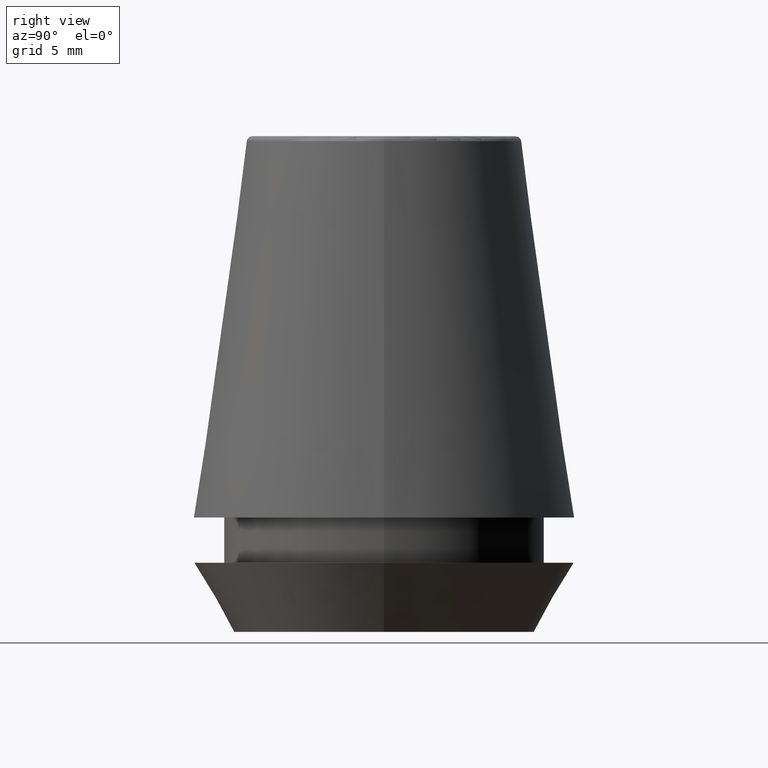
[diagram: clean part render]
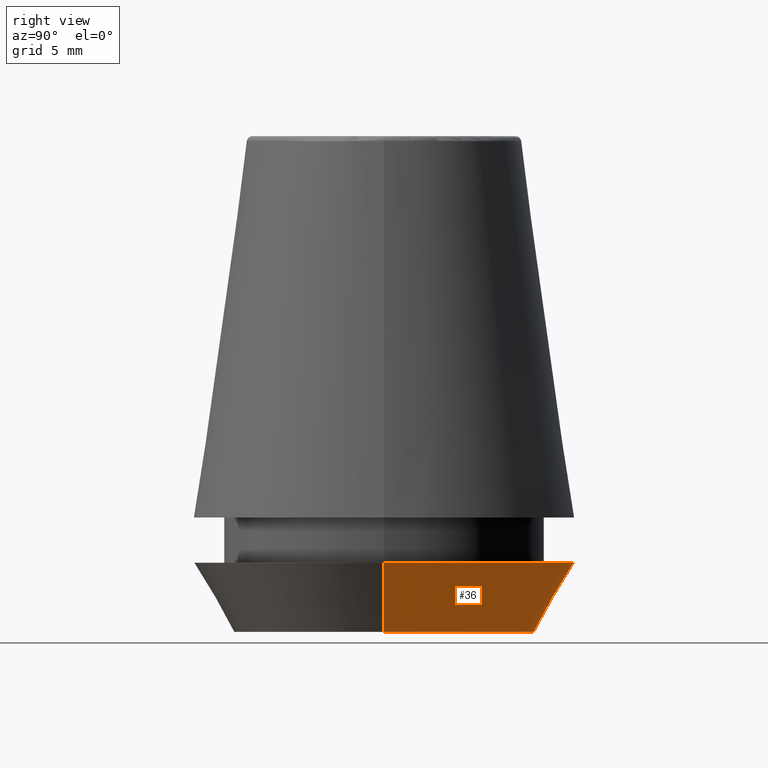
[diagram: same view with one face highlighted and labeled with its STEP entity id]
A machine part, right view. The second image highlights one B-rep face of the part: STEP entity #36.
In plain terms, the highlighted conical surface has half-angle 30 deg.
Its self-contained STEP definition (entity closure, byte-faithful):
#4 = CARTESIAN_POINT ( 'NONE',  ( 10.26217568973925200, 0.0000000000000000000, 0.0000000000000000000 ) ) ;
#36 = ADVANCED_FACE ( 'NONE', ( #154 ), #330, .T. ) ;
#41 = DIRECTION ( 'NONE',  ( -0.0000000000000000000, -0.0000000000000000000, 1.000000000000000000 ) ) ;
#56 = DIRECTION ( 'NONE',  ( 1.000000000000000000, 0.0000000000000000000, 0.0000000000000000000 ) ) ;
#57 = ORIENTED_EDGE ( 'NONE', *, *, #64, .F. ) ;
#64 = EDGE_CURVE ( 'NONE', #69, #136, #370, .T. ) ;
#69 = VERTEX_POINT ( 'NONE', #162 ) ;
#84 = CARTESIAN_POINT ( 'NONE',  ( 0.0000000000000000000, 0.0000000000000000000, 0.0000000000000000000 ) ) ;
#85 = EDGE_CURVE ( 'NONE', #185, #136, #348, .T. ) ;
#90 = EDGE_CURVE ( 'NONE', #124, #185, #270, .T. ) ;
#96 = AXIS2_PLACEMENT_3D ( 'NONE', #385, #192, #195 ) ;
#103 = ORIENTED_EDGE ( 'NONE', *, *, #230, .F. ) ;
#116 = ORIENTED_EDGE ( 'NONE', *, *, #90, .T. ) ;
#124 = VERTEX_POINT ( 'NONE', #287 ) ;
#136 = VERTEX_POINT ( 'NONE', #264 ) ;
#154 = FACE_OUTER_BOUND ( 'NONE', #296, .T. ) ;
#162 = CARTESIAN_POINT ( 'NONE',  ( 13.00000000000000000, 0.0000000000000000000, 4.742050807568884500 ) ) ;
#166 = LINE ( 'NONE', #4, #305 ) ;
#177 = VECTOR ( 'NONE', #278, 1000.000000000000200 ) ;
#185 = VERTEX_POINT ( 'NONE', #263 ) ;
#192 = DIRECTION ( 'NONE',  ( -0.0000000000000000000, -0.0000000000000000000, 1.000000000000000000 ) ) ;
#195 = DIRECTION ( 'NONE',  ( 1.000000000000000000, 0.0000000000000000000, 0.0000000000000000000 ) ) ;
#210 = CARTESIAN_POINT ( 'NONE',  ( -10.26217568973925200, 1.256754061072695800E-015, 0.0000000000000000000 ) ) ;
#230 = EDGE_CURVE ( 'NONE', #124, #69, #166, .T. ) ;
#231 = ORIENTED_EDGE ( 'NONE', *, *, #85, .T. ) ;
#252 = CARTESIAN_POINT ( 'NONE',  ( 0.0000000000000000000, 0.0000000000000000000, 4.742050807568884500 ) ) ;
#261 = DIRECTION ( 'NONE',  ( 0.4999999999999957800, 0.0000000000000000000, 0.8660254037844410400 ) ) ;
#263 = CARTESIAN_POINT ( 'NONE',  ( -10.26217568973925200, 1.424397449982127500E-015, 0.0000000000000000000 ) ) ;
#264 = CARTESIAN_POINT ( 'NONE',  ( -13.00000000000000000, 1.592040838891559100E-015, 4.742050807568884500 ) ) ;
#270 = CIRCLE ( 'NONE', #273, 10.26217568973925200 ) ;
#273 = AXIS2_PLACEMENT_3D ( 'NONE', #84, #41, #56 ) ;
#278 = DIRECTION ( 'NONE',  ( -0.4999999999999957800, 6.123233995736714300E-017, 0.8660254037844410400 ) ) ;
#287 = CARTESIAN_POINT ( 'NONE',  ( 10.26217568973925200, 0.0000000000000000000, 0.0000000000000000000 ) ) ;
#296 = EDGE_LOOP ( 'NONE', ( #116, #231, #57, #103 ) ) ;
#302 = DIRECTION ( 'NONE',  ( 1.000000000000000000, 0.0000000000000000000, 0.0000000000000000000 ) ) ;
#305 = VECTOR ( 'NONE', #261, 1000.000000000000200 ) ;
#313 = DIRECTION ( 'NONE',  ( -0.0000000000000000000, -0.0000000000000000000, 1.000000000000000000 ) ) ;
#330 = CONICAL_SURFACE ( 'NONE', #96, 10.26217568973925200, 0.5235987755982940400 ) ;
#345 = AXIS2_PLACEMENT_3D ( 'NONE', #252, #313, #302 ) ;
#348 = LINE ( 'NONE', #210, #177 ) ;
#370 = CIRCLE ( 'NONE', #345, 13.00000000000000000 ) ;
#385 = CARTESIAN_POINT ( 'NONE',  ( 0.0000000000000000000, 0.0000000000000000000, 0.0000000000000000000 ) ) ;